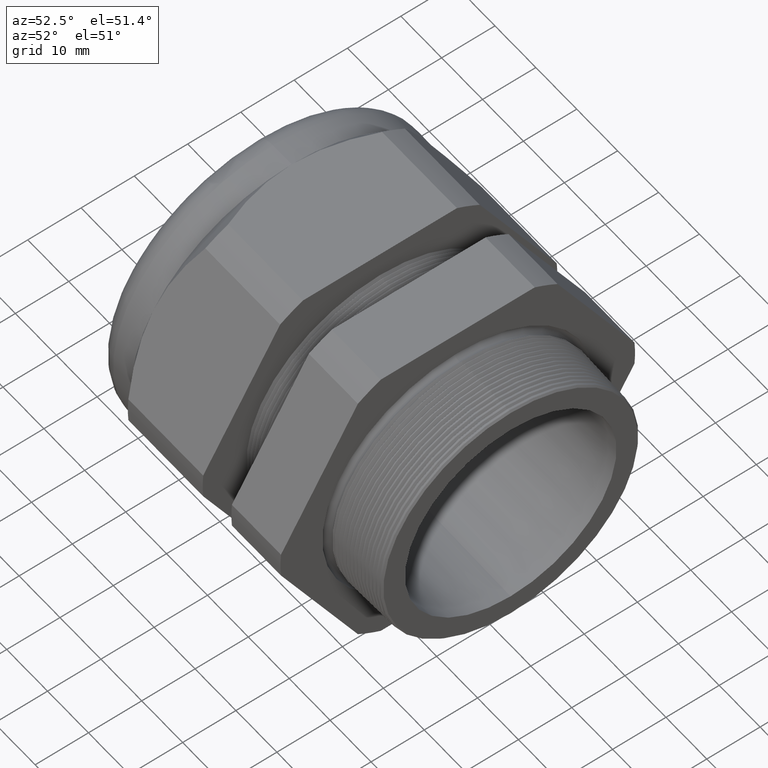
[diagram: clean part render]
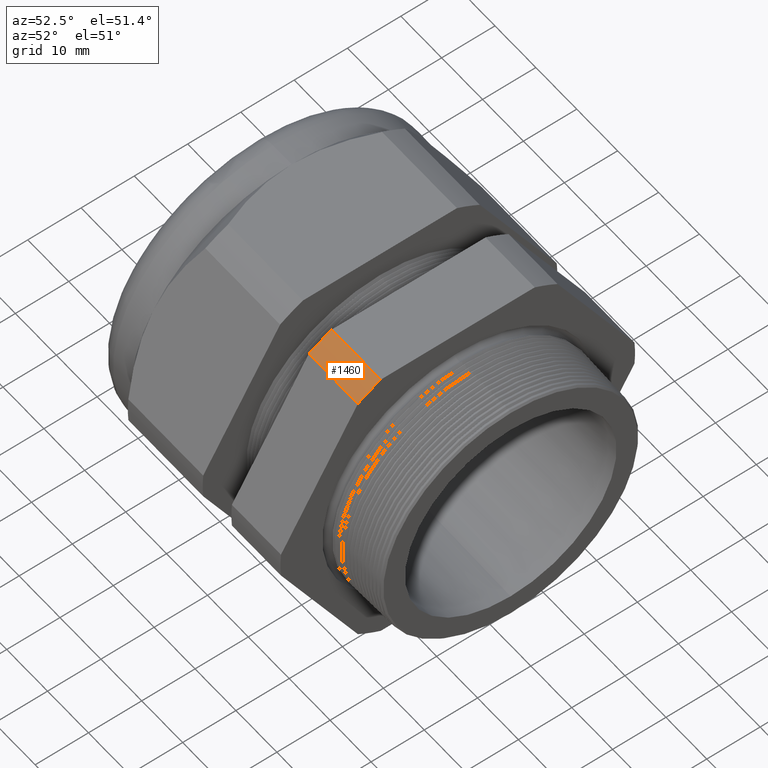
[diagram: same view with one face highlighted and labeled with its STEP entity id]
A machine part, auxiliary view. The second image highlights one B-rep face of the part: STEP entity #1460.
In plain terms, the highlighted cylindrical surface (partial cylindrical patch) has radius 33.2689 mm, axis along (-1, 0, 0).
Its self-contained STEP definition (entity closure, byte-faithful):
#1460 = ADVANCED_FACE ( 'NONE', ( #3881 ), #3879, .T. ) ;
#1462 = ORIENTED_EDGE ( 'NONE', *, *, #1515, .T. ) ;
#1463 = EDGE_LOOP ( 'NONE', ( #1465, #1467, #1462, #1512 ) ) ;
#1465 = ORIENTED_EDGE ( 'NONE', *, *, #1476, .F. ) ;
#1467 = ORIENTED_EDGE ( 'NONE', *, *, #1664, .F. ) ;
#1476 = EDGE_CURVE ( 'NONE', #1663, #1477, #3922, .T. ) ;
#1477 = VERTEX_POINT ( 'NONE', #3914 ) ;
#1512 = ORIENTED_EDGE ( 'NONE', *, *, #1513, .F. ) ;
#1513 = EDGE_CURVE ( 'NONE', #1477, #1518, #3980, .T. ) ;
#1515 = EDGE_CURVE ( 'NONE', #1668, #1518, #3976, .T. ) ;
#1518 = VERTEX_POINT ( 'NONE', #3963 ) ;
#1663 = VERTEX_POINT ( 'NONE', #4220 ) ;
#1664 = EDGE_CURVE ( 'NONE', #1668, #1663, #4219, .T. ) ;
#1668 = VERTEX_POINT ( 'NONE', #4214 ) ;
#3876 = DIRECTION ( 'NONE',  ( 0.0000000000000000000, 0.0000000000000000000, 1.000000000000000000 ) ) ;
#3877 = DIRECTION ( 'NONE',  ( -1.000000000000000000, 0.0000000000000000000, 0.0000000000000000000 ) ) ;
#3878 = AXIS2_PLACEMENT_3D ( 'NONE', #3880, #3877, #3876 ) ;
#3879 = CYLINDRICAL_SURFACE ( 'NONE', #3878, 1.309800000000000100 ) ;
#3880 = CARTESIAN_POINT ( 'NONE',  ( 0.2000000000000000400, 0.0000000000000000000, 0.0000000000000000000 ) ) ;
#3881 = FACE_OUTER_BOUND ( 'NONE', #1463, .T. ) ;
#3914 = CARTESIAN_POINT ( 'NONE',  ( -0.7824399999999999100, -0.7376671049631140500, 1.082323095131642500 ) ) ;
#3915 = DIRECTION ( 'NONE',  ( -1.000000000000000000, 0.0000000000000000000, 0.0000000000000000000 ) ) ;
#3916 = VECTOR ( 'NONE', #3915, 39.37007874015748100 ) ;
#3917 = CARTESIAN_POINT ( 'NONE',  ( 0.2000000000000000400, -0.7376671049631140500, 1.082323095131642500 ) ) ;
#3922 = LINE ( 'NONE', #3917, #3916 ) ;
#3963 = CARTESIAN_POINT ( 'NONE',  ( -0.7824399999999999100, -0.5684857430050470600, 1.179999999999999900 ) ) ;
#3973 = DIRECTION ( 'NONE',  ( -1.000000000000000000, 0.0000000000000000000, 0.0000000000000000000 ) ) ;
#3974 = VECTOR ( 'NONE', #3973, 39.37007874015748100 ) ;
#3975 = CARTESIAN_POINT ( 'NONE',  ( 0.2000000000000000400, -0.5684857430050470600, 1.179999999999999900 ) ) ;
#3976 = LINE ( 'NONE', #3975, #3974 ) ;
#3977 = DIRECTION ( 'NONE',  ( 0.0000000000000000000, 0.0000000000000000000, 1.000000000000000000 ) ) ;
#3978 = DIRECTION ( 'NONE',  ( -1.000000000000000000, 0.0000000000000000000, 0.0000000000000000000 ) ) ;
#3979 = AXIS2_PLACEMENT_3D ( 'NONE', #3986, #3978, #3977 ) ;
#3980 = CIRCLE ( 'NONE', #3979, 1.309800000000000100 ) ;
#3986 = CARTESIAN_POINT ( 'NONE',  ( -0.7824399999999999100, 0.0000000000000000000, 0.0000000000000000000 ) ) ;
#4214 = CARTESIAN_POINT ( 'NONE',  ( -0.3100000000000000000, -0.5684857430050470600, 1.179999999999999900 ) ) ;
#4215 = DIRECTION ( 'NONE',  ( 0.0000000000000000000, 0.0000000000000000000, -1.000000000000000000 ) ) ;
#4216 = DIRECTION ( 'NONE',  ( 1.000000000000000000, 0.0000000000000000000, 0.0000000000000000000 ) ) ;
#4217 = CARTESIAN_POINT ( 'NONE',  ( -0.3100000000000000000, 0.0000000000000000000, 0.0000000000000000000 ) ) ;
#4218 = AXIS2_PLACEMENT_3D ( 'NONE', #4217, #4216, #4215 ) ;
#4219 = CIRCLE ( 'NONE', #4218, 1.309800000000000100 ) ;
#4220 = CARTESIAN_POINT ( 'NONE',  ( -0.3100000000000000000, -0.7376671049631140500, 1.082323095131642500 ) ) ;